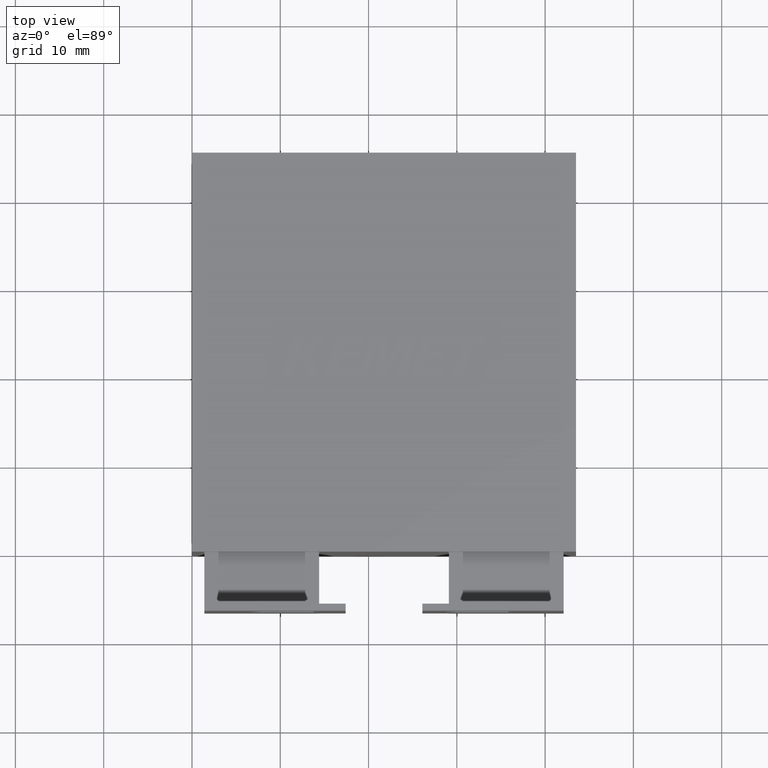
[diagram: clean part render]
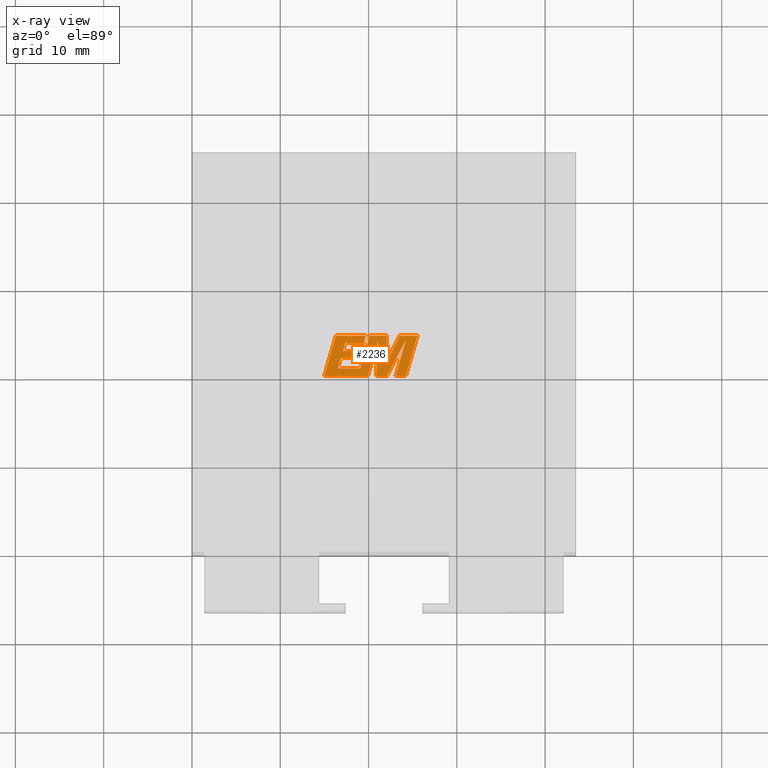
[diagram: x-ray — body ghosted, one internal face saturated and labeled with its STEP entity id]
A machine part, top view, then the same camera in x-ray: the body is ghosted and one INTERNAL B-rep face — a face not visible from any outside direction — is saturated and labeled: STEP entity #2236.
In plain terms, the highlighted planar face has unit normal (0, 0, -1).
Its self-contained STEP definition (entity closure, byte-faithful):
#18 = VECTOR ( 'NONE', #3162, 1000.000000000000100 ) ;
#35 = VERTEX_POINT ( 'NONE', #2151 ) ;
#44 = DIRECTION ( 'NONE',  ( -0.4443210308329065800, -0.8958676361827027100, 0.0000000000000000000 ) ) ;
#60 = VECTOR ( 'NONE', #1579, 999.9999999999998900 ) ;
#99 = LINE ( 'NONE', #2497, #968 ) ;
#147 = AXIS2_PLACEMENT_3D ( 'NONE', #2731, #2240, #646 ) ;
#183 = LINE ( 'NONE', #277, #2836 ) ;
#195 = LINE ( 'NONE', #2690, #2321 ) ;
#224 = CARTESIAN_POINT ( 'NONE',  ( 24.22118310576136900, 19.87443999999985800, 30.39999999999999900 ) ) ;
#232 = VERTEX_POINT ( 'NONE', #2511 ) ;
#251 = LINE ( 'NONE', #2749, #1726 ) ;
#277 = CARTESIAN_POINT ( 'NONE',  ( 21.08146960254265800, 23.94814400893627100, 30.39999999999999900 ) ) ;
#278 = VERTEX_POINT ( 'NONE', #3135 ) ;
#313 = LINE ( 'NONE', #743, #3126 ) ;
#369 = VERTEX_POINT ( 'NONE', #1510 ) ;
#376 = CARTESIAN_POINT ( 'NONE',  ( 20.85312680230717300, 19.87443999999985800, 30.39999999999999900 ) ) ;
#387 = CARTESIAN_POINT ( 'NONE',  ( 16.29898743055748500, 24.45022825411974300, 30.39999999999999900 ) ) ;
#406 = VERTEX_POINT ( 'NONE', #2919 ) ;
#424 = LINE ( 'NONE', #3225, #2178 ) ;
#427 = VERTEX_POINT ( 'NONE', #3464 ) ;
#462 = ORIENTED_EDGE ( 'NONE', *, *, #1168, .F. ) ;
#508 = CARTESIAN_POINT ( 'NONE',  ( 16.53424507184131200, 20.74498649102940500, 30.39999999999999900 ) ) ;
#512 = LINE ( 'NONE', #3031, #2551 ) ;
#530 = CARTESIAN_POINT ( 'NONE',  ( 14.98225977203588900, 19.87443999999985800, 30.39999999999999900 ) ) ;
#535 = ORIENTED_EDGE ( 'NONE', *, *, #685, .F. ) ;
#575 = LINE ( 'NONE', #224, #60 ) ;
#628 = ORIENTED_EDGE ( 'NONE', *, *, #2582, .F. ) ;
#635 = EDGE_CURVE ( 'NONE', #727, #3393, #1820, .T. ) ;
#646 = DIRECTION ( 'NONE',  ( -1.000000000000000000, 0.0000000000000000000, 0.0000000000000000000 ) ) ;
#677 = CARTESIAN_POINT ( 'NONE',  ( 19.91179014752762200, 19.87443999999985800, 30.39999999999999900 ) ) ;
#685 = EDGE_CURVE ( 'NONE', #1769, #35, #251, .T. ) ;
#688 = ORIENTED_EDGE ( 'NONE', *, *, #3081, .F. ) ;
#691 = DIRECTION ( 'NONE',  ( 0.2746459304916912300, 0.9615454294334475600, 0.0000000000000000000 ) ) ;
#727 = VERTEX_POINT ( 'NONE', #1184 ) ;
#743 = CARTESIAN_POINT ( 'NONE',  ( 21.90852838472134700, 21.18122633371032700, 30.39999999999999900 ) ) ;
#757 = EDGE_CURVE ( 'NONE', #369, #406, #1519, .T. ) ;
#766 = DIRECTION ( 'NONE',  ( 0.2740217765954066100, 0.9617234872620595800, 0.0000000000000000000 ) ) ;
#770 = DIRECTION ( 'NONE',  ( -1.000000000000000000, 0.0000000000000000000, 0.0000000000000000000 ) ) ;
#828 = CARTESIAN_POINT ( 'NONE',  ( 20.85312680230717300, 19.87443999999985800, 30.39999999999999900 ) ) ;
#836 = ORIENTED_EDGE ( 'NONE', *, *, #2744, .F. ) ;
#855 = PLANE ( 'NONE',  #147 ) ;
#858 = ORIENTED_EDGE ( 'NONE', *, *, #2024, .F. ) ;
#886 = VERTEX_POINT ( 'NONE', #3324 ) ;
#887 = VERTEX_POINT ( 'NONE', #2246 ) ;
#889 = VECTOR ( 'NONE', #766, 1000.000000000000200 ) ;
#899 = VECTOR ( 'NONE', #3288, 1000.000000000000200 ) ;
#927 = LINE ( 'NONE', #3239, #1541 ) ;
#944 = DIRECTION ( 'NONE',  ( 1.000000000000000000, 0.0000000000000000000, 0.0000000000000000000 ) ) ;
#951 = DIRECTION ( 'NONE',  ( 0.2759782365590802100, 0.9611638845408937400, 0.0000000000000000000 ) ) ;
#959 = DIRECTION ( 'NONE',  ( 1.000000000000000000, 0.0000000000000000000, 0.0000000000000000000 ) ) ;
#964 = CARTESIAN_POINT ( 'NONE',  ( 25.53675596823577700, 24.45022825411974300, 30.39999999999999900 ) ) ;
#968 = VECTOR ( 'NONE', #1451, 1000.000000000000100 ) ;
#994 = ORIENTED_EDGE ( 'NONE', *, *, #3258, .F. ) ;
#999 = CARTESIAN_POINT ( 'NONE',  ( 24.23387190869865600, 23.96776156610042100, 30.39999999999999900 ) ) ;
#1065 = VECTOR ( 'NONE', #1458, 1000.000000000000000 ) ;
#1089 = VECTOR ( 'NONE', #770, 1000.000000000000000 ) ;
#1112 = VECTOR ( 'NONE', #2223, 1000.000000000000000 ) ;
#1121 = EDGE_CURVE ( 'NONE', #887, #1730, #424, .T. ) ;
#1168 = EDGE_CURVE ( 'NONE', #3393, #1220, #2650, .T. ) ;
#1180 = CARTESIAN_POINT ( 'NONE',  ( 16.53424507184131200, 20.74498649102940500, 30.39999999999999900 ) ) ;
#1184 = CARTESIAN_POINT ( 'NONE',  ( 17.09962028696061500, 22.72815456332500600, 30.39999999999999900 ) ) ;
#1189 = CARTESIAN_POINT ( 'NONE',  ( 22.07299102946614900, 19.87443999999985800, 30.39999999999999900 ) ) ;
#1193 = ORIENTED_EDGE ( 'NONE', *, *, #1848, .F. ) ;
#1220 = VERTEX_POINT ( 'NONE', #2764 ) ;
#1241 = ORIENTED_EDGE ( 'NONE', *, *, #3463, .F. ) ;
#1263 = CARTESIAN_POINT ( 'NONE',  ( 22.07299102946614900, 19.87443999999985800, 30.39999999999999900 ) ) ;
#1269 = DIRECTION ( 'NONE',  ( 0.05375259206908333100, 0.9985542843760947300, 0.0000000000000000000 ) ) ;
#1277 = EDGE_CURVE ( 'NONE', #2103, #232, #3184, .T. ) ;
#1314 = EDGE_CURVE ( 'NONE', #3434, #1837, #2019, .T. ) ;
#1317 = LINE ( 'NONE', #677, #2598 ) ;
#1324 = EDGE_CURVE ( 'NONE', #232, #2910, #1317, .T. ) ;
#1337 = LINE ( 'NONE', #3090, #2075 ) ;
#1344 = VECTOR ( 'NONE', #944, 1000.000000000000000 ) ;
#1388 = VERTEX_POINT ( 'NONE', #1263 ) ;
#1399 = CARTESIAN_POINT ( 'NONE',  ( 17.09962028696061500, 22.72815456332500600, 30.39999999999999900 ) ) ;
#1401 = ORIENTED_EDGE ( 'NONE', *, *, #1324, .F. ) ;
#1451 = DIRECTION ( 'NONE',  ( -0.2762517575166413800, -0.9610853065513834700, 0.0000000000000000000 ) ) ;
#1458 = DIRECTION ( 'NONE',  ( 1.000000000000000000, 0.0000000000000000000, 0.0000000000000000000 ) ) ;
#1464 = ORIENTED_EDGE ( 'NONE', *, *, #3014, .F. ) ;
#1480 = EDGE_CURVE ( 'NONE', #1730, #369, #2506, .T. ) ;
#1485 = ORIENTED_EDGE ( 'NONE', *, *, #2531, .F. ) ;
#1510 = CARTESIAN_POINT ( 'NONE',  ( 16.85828259423837500, 21.88224828064108300, 30.39999999999999900 ) ) ;
#1515 = ORIENTED_EDGE ( 'NONE', *, *, #2488, .F. ) ;
#1519 = LINE ( 'NONE', #2470, #1112 ) ;
#1541 = VECTOR ( 'NONE', #2159, 1000.000000000000100 ) ;
#1555 = ORIENTED_EDGE ( 'NONE', *, *, #1121, .F. ) ;
#1570 = CARTESIAN_POINT ( 'NONE',  ( 25.53675596823577700, 24.45022825411974300, 30.39999999999999900 ) ) ;
#1579 = DIRECTION ( 'NONE',  ( 0.2763139702539123600, 0.9610674221107071700, 0.0000000000000000000 ) ) ;
#1613 = VERTEX_POINT ( 'NONE', #828 ) ;
#1620 = DIRECTION ( 'NONE',  ( -1.000000000000000000, 0.0000000000000000000, 0.0000000000000000000 ) ) ;
#1629 = FACE_OUTER_BOUND ( 'NONE', #2491, .T. ) ;
#1726 = VECTOR ( 'NONE', #44, 1000.000000000000000 ) ;
#1730 = VERTEX_POINT ( 'NONE', #1180 ) ;
#1745 = ORIENTED_EDGE ( 'NONE', *, *, #757, .F. ) ;
#1769 = VERTEX_POINT ( 'NONE', #3363 ) ;
#1778 = EDGE_CURVE ( 'NONE', #886, #427, #512, .T. ) ;
#1783 = CARTESIAN_POINT ( 'NONE',  ( 23.05840457866102600, 19.87443999999985800, 30.39999999999999900 ) ) ;
#1820 = LINE ( 'NONE', #1399, #899 ) ;
#1834 = VECTOR ( 'NONE', #2819, 1000.000000000000200 ) ;
#1837 = VERTEX_POINT ( 'NONE', #387 ) ;
#1848 = EDGE_CURVE ( 'NONE', #1613, #1388, #3474, .T. ) ;
#1870 = CARTESIAN_POINT ( 'NONE',  ( 24.22118310576136900, 19.87443999999985800, 30.39999999999999900 ) ) ;
#1916 = DIRECTION ( 'NONE',  ( -1.000000000000000000, 0.0000000000000000000, 0.0000000000000000000 ) ) ;
#1926 = LINE ( 'NONE', #1570, #1089 ) ;
#1934 = VERTEX_POINT ( 'NONE', #2191 ) ;
#1993 = DIRECTION ( 'NONE',  ( -1.000000000000000000, 0.0000000000000000000, 0.0000000000000000000 ) ) ;
#2019 = LINE ( 'NONE', #2835, #2334 ) ;
#2024 = EDGE_CURVE ( 'NONE', #1934, #727, #195, .T. ) ;
#2043 = CARTESIAN_POINT ( 'NONE',  ( 18.82198615413673800, 21.88224828064108300, 30.39999999999999900 ) ) ;
#2075 = VECTOR ( 'NONE', #2851, 1000.000000000000100 ) ;
#2079 = DIRECTION ( 'NONE',  ( 1.000000000000000000, 0.0000000000000000000, 0.0000000000000000000 ) ) ;
#2103 = VERTEX_POINT ( 'NONE', #530 ) ;
#2151 = CARTESIAN_POINT ( 'NONE',  ( 21.90852838472134700, 21.18122633371032700, 30.39999999999999900 ) ) ;
#2159 = DIRECTION ( 'NONE',  ( -0.2760118818968579400, -0.9611542233438684600, 0.0000000000000000000 ) ) ;
#2178 = VECTOR ( 'NONE', #1620, 1000.000000000000000 ) ;
#2191 = CARTESIAN_POINT ( 'NONE',  ( 19.06360211008109600, 22.72815456332500600, 30.39999999999999900 ) ) ;
#2223 = DIRECTION ( 'NONE',  ( 1.000000000000000000, 0.0000000000000000000, 0.0000000000000000000 ) ) ;
#2236 = ADVANCED_FACE ( 'NONE', ( #1629 ), #855, .T. ) ;
#2240 = DIRECTION ( 'NONE',  ( 0.0000000000000000000, 0.0000000000000000000, -1.000000000000000000 ) ) ;
#2244 = LINE ( 'NONE', #2379, #18 ) ;
#2246 = CARTESIAN_POINT ( 'NONE',  ( 19.07080912752578400, 20.74498649102940500, 30.39999999999999900 ) ) ;
#2250 = ORIENTED_EDGE ( 'NONE', *, *, #2981, .F. ) ;
#2266 = EDGE_CURVE ( 'NONE', #1388, #3036, #2326, .T. ) ;
#2274 = CARTESIAN_POINT ( 'NONE',  ( 19.09731369580272500, 19.87443999999985800, 30.39999999999999900 ) ) ;
#2321 = VECTOR ( 'NONE', #1916, 1000.000000000000000 ) ;
#2326 = LINE ( 'NONE', #1189, #1834 ) ;
#2334 = VECTOR ( 'NONE', #3102, 1000.000000000000000 ) ;
#2344 = VERTEX_POINT ( 'NONE', #964 ) ;
#2373 = ORIENTED_EDGE ( 'NONE', *, *, #635, .F. ) ;
#2379 = CARTESIAN_POINT ( 'NONE',  ( 16.29898743055748500, 24.45022825411974300, 30.39999999999999900 ) ) ;
#2420 = ORIENTED_EDGE ( 'NONE', *, *, #2266, .F. ) ;
#2421 = DIRECTION ( 'NONE',  ( -0.05596501978068172500, -0.9984327301130245800, 0.0000000000000000000 ) ) ;
#2467 = ORIENTED_EDGE ( 'NONE', *, *, #1778, .F. ) ;
#2470 = CARTESIAN_POINT ( 'NONE',  ( 16.85828259423837500, 21.88224828064108300, 30.39999999999999900 ) ) ;
#2488 = EDGE_CURVE ( 'NONE', #2344, #1769, #1926, .T. ) ;
#2491 = EDGE_LOOP ( 'NONE', ( #1515, #1485, #1241, #836, #2420, #1193, #994, #1401, #2761, #628, #2510, #1464, #462, #2373, #858, #2250, #1745, #2570, #1555, #2626, #2467, #688, #535 ) ) ;
#2497 = CARTESIAN_POINT ( 'NONE',  ( 20.13583378465078500, 24.45022825411974300, 30.39999999999999900 ) ) ;
#2506 = LINE ( 'NONE', #508, #889 ) ;
#2510 = ORIENTED_EDGE ( 'NONE', *, *, #1314, .F. ) ;
#2511 = CARTESIAN_POINT ( 'NONE',  ( 19.91179014752762200, 19.87443999999985800, 30.39999999999999900 ) ) ;
#2519 = CARTESIAN_POINT ( 'NONE',  ( 17.34727455482921600, 23.57925045510423000, 30.39999999999999900 ) ) ;
#2531 = EDGE_CURVE ( 'NONE', #3218, #2344, #575, .T. ) ;
#2551 = VECTOR ( 'NONE', #1993, 1000.000000000000000 ) ;
#2570 = ORIENTED_EDGE ( 'NONE', *, *, #1480, .F. ) ;
#2582 = EDGE_CURVE ( 'NONE', #1837, #2103, #2244, .T. ) ;
#2598 = VECTOR ( 'NONE', #951, 999.9999999999998900 ) ;
#2617 = VECTOR ( 'NONE', #2079, 1000.000000000000000 ) ;
#2626 = ORIENTED_EDGE ( 'NONE', *, *, #2793, .F. ) ;
#2650 = LINE ( 'NONE', #2519, #1065 ) ;
#2690 = CARTESIAN_POINT ( 'NONE',  ( 19.06360211008109600, 22.72815456332500600, 30.39999999999999900 ) ) ;
#2731 = CARTESIAN_POINT ( 'NONE',  ( -0.7125363877748276400, 3.133653313437075200, 30.39999999999999100 ) ) ;
#2744 = EDGE_CURVE ( 'NONE', #3036, #278, #927, .T. ) ;
#2749 = CARTESIAN_POINT ( 'NONE',  ( 23.52984636118058500, 24.45022825411974300, 30.39999999999999900 ) ) ;
#2758 = LINE ( 'NONE', #2043, #3250 ) ;
#2761 = ORIENTED_EDGE ( 'NONE', *, *, #1277, .F. ) ;
#2764 = CARTESIAN_POINT ( 'NONE',  ( 19.43205044275801200, 23.57925045510423000, 30.39999999999999900 ) ) ;
#2793 = EDGE_CURVE ( 'NONE', #427, #887, #99, .T. ) ;
#2819 = DIRECTION ( 'NONE',  ( 0.4668459304955219200, 0.8843386665637607000, 0.0000000000000000000 ) ) ;
#2835 = CARTESIAN_POINT ( 'NONE',  ( 19.67942644740472600, 24.45022825411974300, 30.39999999999999900 ) ) ;
#2836 = VECTOR ( 'NONE', #2421, 1000.000000000000100 ) ;
#2851 = DIRECTION ( 'NONE',  ( 0.2732148821746205900, 0.9619530280415505800, 0.0000000000000000000 ) ) ;
#2910 = VERTEX_POINT ( 'NONE', #3276 ) ;
#2919 = CARTESIAN_POINT ( 'NONE',  ( 18.82198615413673800, 21.88224828064108300, 30.39999999999999900 ) ) ;
#2981 = EDGE_CURVE ( 'NONE', #406, #1934, #2758, .T. ) ;
#3014 = EDGE_CURVE ( 'NONE', #1220, #3434, #1337, .T. ) ;
#3031 = CARTESIAN_POINT ( 'NONE',  ( 22.08450011650416700, 24.45022825411974300, 30.39999999999999900 ) ) ;
#3036 = VERTEX_POINT ( 'NONE', #999 ) ;
#3081 = EDGE_CURVE ( 'NONE', #35, #886, #313, .T. ) ;
#3090 = CARTESIAN_POINT ( 'NONE',  ( 19.43205044275801200, 23.57925045510423000, 30.39999999999999900 ) ) ;
#3099 = CARTESIAN_POINT ( 'NONE',  ( 17.34727455482921600, 23.57925045510423000, 30.39999999999999900 ) ) ;
#3102 = DIRECTION ( 'NONE',  ( -1.000000000000000000, 0.0000000000000000000, 0.0000000000000000000 ) ) ;
#3104 = VECTOR ( 'NONE', #959, 1000.000000000000000 ) ;
#3111 = CARTESIAN_POINT ( 'NONE',  ( 19.67942644740472600, 24.45022825411974300, 30.39999999999999900 ) ) ;
#3126 = VECTOR ( 'NONE', #1269, 1000.000000000000000 ) ;
#3135 = CARTESIAN_POINT ( 'NONE',  ( 23.05840457866102600, 19.87443999999985800, 30.39999999999999900 ) ) ;
#3162 = DIRECTION ( 'NONE',  ( -0.2765379750249961600, -0.9610029908221277000, 0.0000000000000000000 ) ) ;
#3184 = LINE ( 'NONE', #2274, #3104 ) ;
#3218 = VERTEX_POINT ( 'NONE', #1870 ) ;
#3225 = CARTESIAN_POINT ( 'NONE',  ( 19.07080912752578400, 20.74498649102940500, 30.39999999999999900 ) ) ;
#3239 = CARTESIAN_POINT ( 'NONE',  ( 24.23387190869865600, 23.96776156610042100, 30.39999999999999900 ) ) ;
#3250 = VECTOR ( 'NONE', #691, 1000.000000000000100 ) ;
#3258 = EDGE_CURVE ( 'NONE', #2910, #1613, #183, .T. ) ;
#3276 = CARTESIAN_POINT ( 'NONE',  ( 21.08146960254265800, 23.94814400893627100, 30.39999999999999900 ) ) ;
#3288 = DIRECTION ( 'NONE',  ( 0.2793947940878301900, 0.9601763114327591700, 0.0000000000000000000 ) ) ;
#3324 = CARTESIAN_POINT ( 'NONE',  ( 22.08450011650416700, 24.45022825411974300, 30.39999999999999900 ) ) ;
#3333 = LINE ( 'NONE', #1783, #2617 ) ;
#3363 = CARTESIAN_POINT ( 'NONE',  ( 23.52984636118058500, 24.45022825411974300, 30.39999999999999900 ) ) ;
#3393 = VERTEX_POINT ( 'NONE', #3099 ) ;
#3434 = VERTEX_POINT ( 'NONE', #3111 ) ;
#3463 = EDGE_CURVE ( 'NONE', #278, #3218, #3333, .T. ) ;
#3464 = CARTESIAN_POINT ( 'NONE',  ( 20.13583378465078500, 24.45022825411974300, 30.39999999999999900 ) ) ;
#3474 = LINE ( 'NONE', #376, #1344 ) ;